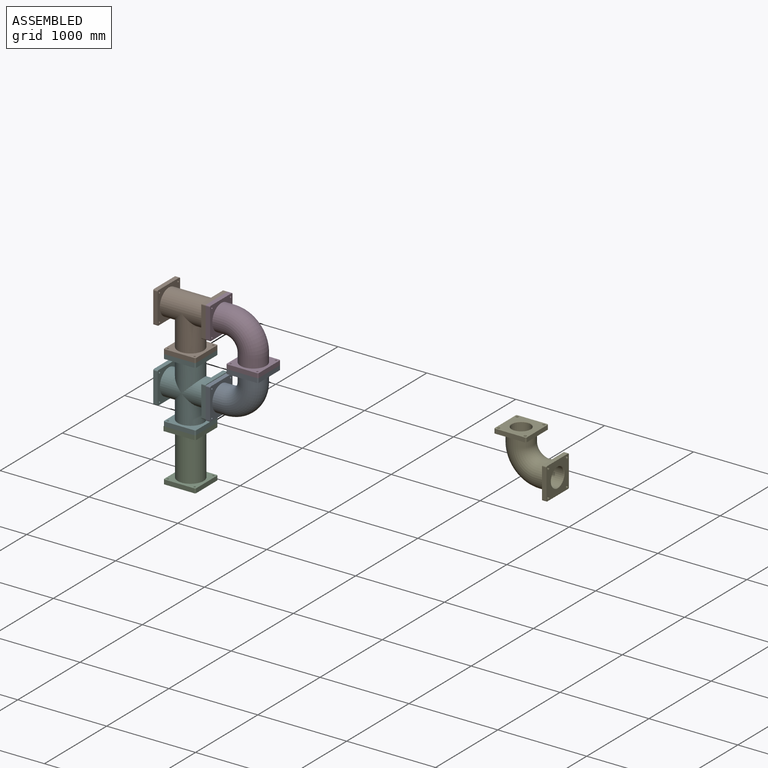
[diagram: assembled view]
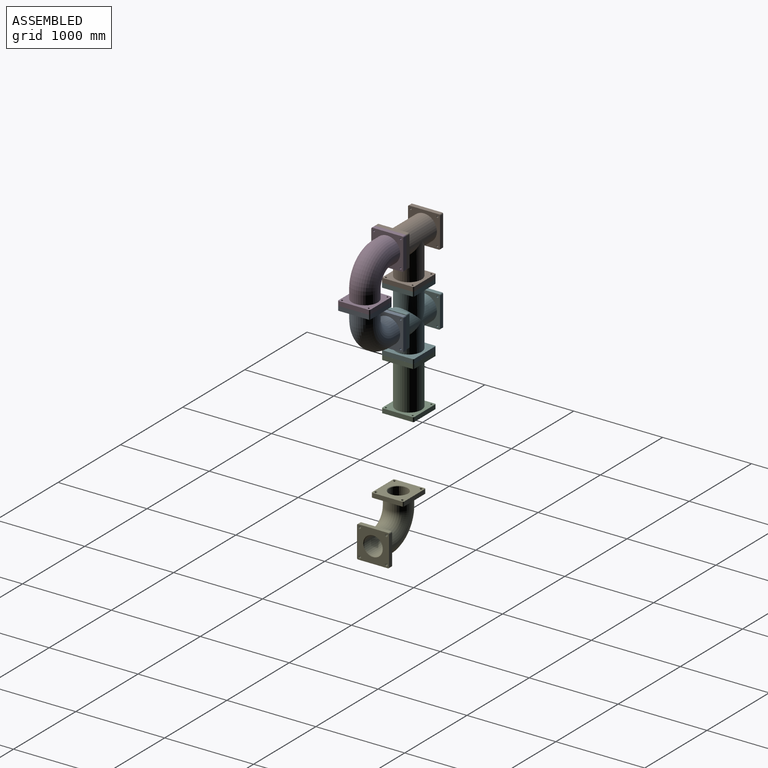
[diagram: assembled view, second angle]
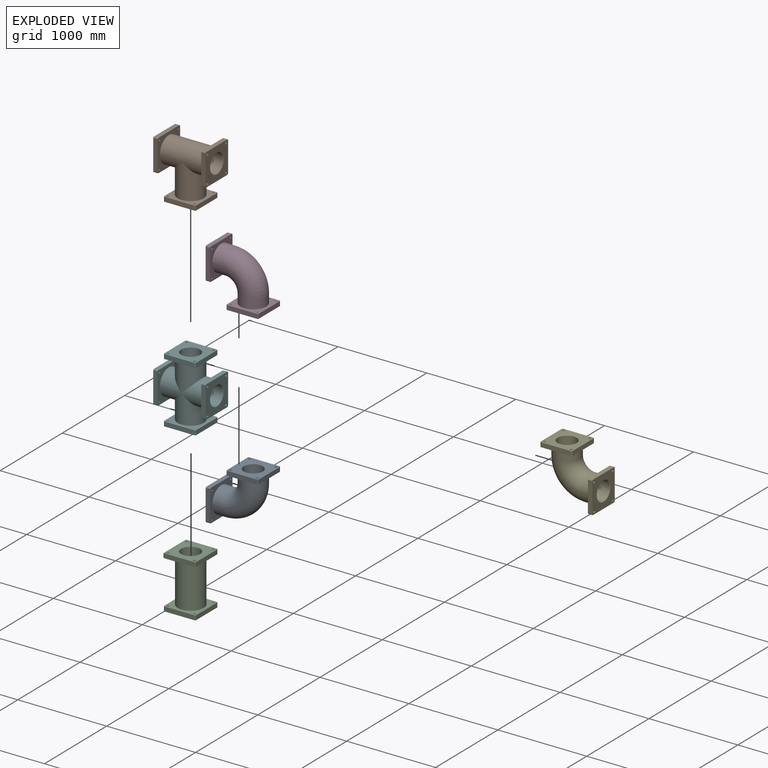
[diagram: exploded view]
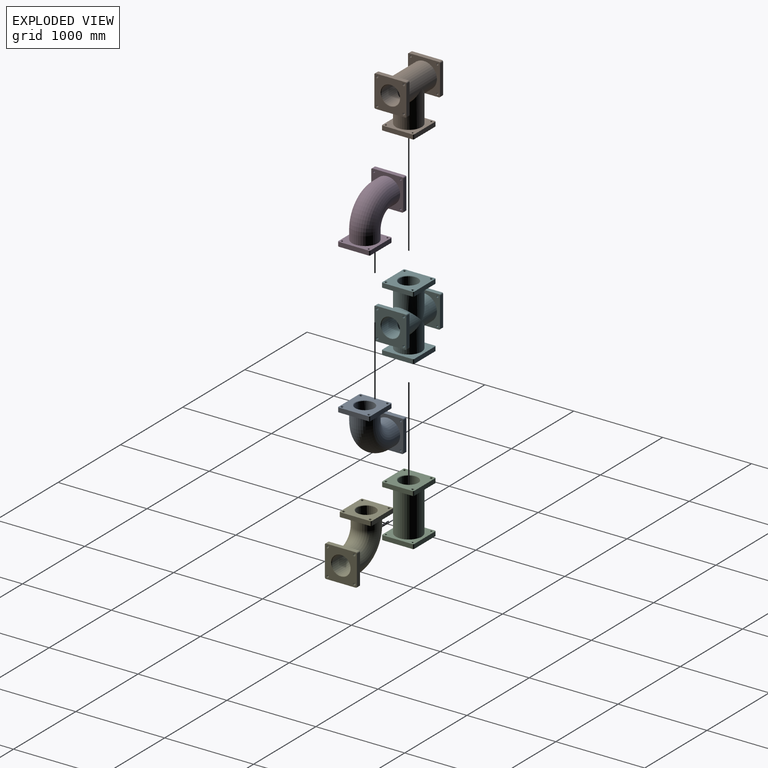
[diagram: exploded view, second angle]
ASSEMBLY  parts=6 mates=4
PART A: 52 faces, bbox 590x360x590 mm
  f0: cylinder r=10mm len=45mm, axis (0,0,1), area 2827.4mm2, adj f2,f30
  f1: cylinder r=15mm len=30mm, axis (0,0,1), area 471.2mm2, adj f2,f20
  f2: plane 30x30mm, normal (0,0,1), area 392.7mm2, adj f0,f1
  f3: cylinder r=10mm len=45mm, axis (0,0,1), area 2827.4mm2, adj f5,f30
  f4: cylinder r=15mm len=30mm, axis (0,0,1), area 471.2mm2, adj f5,f20
  f5: plane 30x30mm, normal (0,0,1), area 392.7mm2, adj f3,f4
  f6: cylinder r=10mm len=45mm, axis (0,0,1), area 2827.4mm2, adj f8,f30
  f7: cylinder r=15mm len=30mm, axis (0,0,1), area 471.2mm2, adj f8,f20
  f8: plane 30x30mm, normal (0,0,1), area 392.7mm2, adj f6,f7
  f9: cylinder r=10mm len=45mm, axis (1,0,0), area 2827.4mm2, adj f11,f35
  f10: cylinder r=15mm len=30mm, axis (1,0,0), area 471.2mm2, adj f11,f21
  f11: plane 30x30mm, normal (1,0,0), area 392.7mm2, adj f9,f10
  f12: cylinder r=10mm len=45mm, axis (1,0,0), area 2827.4mm2, adj f14,f35
  f13: cylinder r=15mm len=30mm, axis (1,0,0), area 471.2mm2, adj f14,f21
  f14: plane 30x30mm, normal (1,0,0), area 392.7mm2, adj f12,f13
  f15: cylinder r=10mm len=45mm, axis (1,0,0), area 2827.4mm2, adj f17,f35
  f16: cylinder r=15mm len=30mm, axis (1,0,0), area 471.2mm2, adj f17,f21
  f17: plane 30x30mm, normal (1,0,0), area 392.7mm2, adj f15,f16
  f18: cylinder r=145mm len=290mm, axis (1,0,0), area 91106.2mm2, adj f22,f35
  f19: cylinder r=145mm len=290mm, axis (0,0,-1), area 91106.2mm2, adj f22,f30
  f20: plane 360x360mm, normal (0,0,1), area 88635.7mm2, adj f1,f4,f7,f26,f27,f28,f29,f36
  f21: plane 360x360mm, normal (1,0,0), area 88635.7mm2, adj f10,f13,f16,f31,f32,f33,f34,f37
  f22: torus R=260mm, axis (0,-1,0), area 372084.1mm2, adj f18,f19
  f23: cylinder r=105mm len=210mm, axis (0,0,-1), area 95661.5mm2, adj f24,f36
  f24: torus R=260mm, axis (0,-1,0), area 269440.2mm2, adj f23,f25
  f25: cylinder r=105mm len=210mm, axis (1,0,0), area 95661.5mm2, adj f24,f37
  f26: plane 336x50mm, normal (1,0,0), area 16800mm2, adj f20,f30,f42,f45
  f27: plane 336x50mm, normal (0,1,0), area 16800mm2, adj f20,f30,f42,f43
  f28: plane 336x50mm, normal (-1,0,0), area 16800mm2, adj f20,f30,f43,f44
  f29: plane 336x50mm, normal (0,-1,0), area 16800mm2, adj f20,f30,f44,f45
  f30: plane 360x360mm, normal (0,0,-1), area 62167.8mm2, adj f0,f3,f6,f19,f26,f27,f28,f29
  f31: plane 336x50mm, normal (0,1,0), area 16800mm2, adj f21,f35,f38,f41
  f32: plane 336x50mm, normal (0,0,1), area 16800mm2, adj f21,f35,f38,f39
  f33: plane 336x50mm, normal (0,-1,0), area 16800mm2, adj f21,f35,f39,f40
  f34: plane 336x50mm, normal (0,0,-1), area 16800mm2, adj f21,f35,f40,f41
  f35: plane 360x360mm, normal (-1,0,0), area 62167.8mm2, adj f9,f12,f15,f18,f31,f32,f33,f34
  f36: cone r=110mm half-angle=45deg, axis (0,0,1), area 4776.1mm2, adj f20,f23
  f37: cone r=105mm half-angle=45deg, axis (1,0,0), area 4776.1mm2, adj f21,f25
  f38: cylinder r=12mm len=50mm, axis (-1,0,0), area 942.5mm2, adj f21,f31,f32,f35
  f39: cylinder r=12mm len=50mm, axis (1,0,0), area 942.5mm2, adj f21,f32,f33,f35
  f40: cylinder r=12mm len=50mm, axis (-1,0,0), area 942.5mm2, adj f21,f33,f34,f35
  f41: cylinder r=12mm len=50mm, axis (1,0,0), area 942.5mm2, adj f21,f31,f34,f35
  f42: cylinder r=12mm len=50mm, axis (0,0,-1), area 942.5mm2, adj f20,f26,f27,f30
  f43: cylinder r=12mm len=50mm, axis (0,0,1), area 942.5mm2, adj f20,f27,f28,f30
  f44: cylinder r=12mm len=50mm, axis (0,0,-1), area 942.5mm2, adj f20,f28,f29,f30
  f45: cylinder r=12mm len=50mm, axis (0,0,1), area 942.5mm2, adj f20,f26,f29,f30
  f46: cylinder r=15mm len=30mm, axis (1,0,0), area 471.2mm2, adj f21,f47
  f47: plane 30x30mm, normal (1,0,0), area 392.7mm2, adj f46,f48
  f48: cylinder r=10mm len=45mm, axis (1,0,0), area 2827.4mm2, adj f35,f47
  f49: cylinder r=15mm len=30mm, axis (0,0,1), area 471.2mm2, adj f20,f50
  f50: plane 30x30mm, normal (0,0,1), area 392.7mm2, adj f49,f51
  f51: cylinder r=10mm len=45mm, axis (0,0,1), area 2827.4mm2, adj f30,f50
PART B: 75 faces, bbox 590x360x625 mm
  f0: cylinder r=10mm len=45mm, axis (0,0,-1), area 2827.4mm2, adj f2,f66
  f1: cylinder r=15mm len=30mm, axis (0,0,-1), area 471.2mm2, adj f2,f12
  f2: plane 30x30mm, normal (0,0,-1), area 392.7mm2, adj f0,f1
  f3: cylinder r=10mm len=45mm, axis (0,0,-1), area 2827.4mm2, adj f5,f66
  f4: cylinder r=15mm len=30mm, axis (0,0,-1), area 471.2mm2, adj f5,f12
  f5: plane 30x30mm, normal (0,0,-1), area 392.7mm2, adj f3,f4
  f6: cylinder r=10mm len=45mm, axis (0,0,-1), area 2827.4mm2, adj f8,f66
  f7: cylinder r=15mm len=30mm, axis (0,0,-1), area 471.2mm2, adj f8,f12
  f8: plane 30x30mm, normal (0,0,-1), area 392.7mm2, adj f6,f7
  f9: cylinder r=145mm len=395mm, axis (0,0,1), area 275769.5mm2, adj f50,f66
  f10: cylinder r=105mm len=580mm, axis (-1,0,0), area 338669.9mm2, adj f11,f29,f30,f60,f61
  f11: cylinder r=105mm len=432.13mm, axis (0,0,1), area 246059.4mm2, adj f10,f60,f61,f70
  f12: plane 360x360mm, normal (0,0,-1), area 88635.7mm2, adj f1,f4,f7,f62,f63,f64,f65,f67
  f13: cylinder r=12mm len=50mm, axis (1,0,0), area 942.5mm2, adj f20,f21,f24,f40
  f14: cylinder r=12mm len=50mm, axis (-1,0,0), area 942.5mm2, adj f20,f21,f22,f40
  f15: cylinder r=12mm len=50mm, axis (1,0,0), area 942.5mm2, adj f20,f22,f23,f40
  f16: cylinder r=12mm len=50mm, axis (-1,0,0), area 942.5mm2, adj f20,f23,f24,f40
  f17: cylinder r=10mm len=45mm, axis (1,0,0), area 2827.4mm2, adj f18,f20
  f18: plane 30x30mm, normal (1,0,0), area 392.7mm2, adj f17,f19
  f19: cylinder r=15mm len=30mm, axis (1,0,0), area 471.2mm2, adj f18,f40
  f20: plane 360x360mm, normal (-1,0,0), area 62167.8mm2, adj f13,f14,f15,f16,f17,f21,f22,f23
  f21: plane 336x50mm, normal (0,-1,0), area 16800mm2, adj f13,f14,f20,f40
  f22: plane 336x50mm, normal (0,0,1), area 16800mm2, adj f14,f15,f20,f40
  f23: plane 336x50mm, normal (0,1,0), area 16800mm2, adj f15,f16,f20,f40
  f24: plane 336x50mm, normal (0,0,-1), area 16800mm2, adj f13,f16,f20,f40
  f25: cylinder r=12mm len=50mm, axis (-1,0,0), area 942.5mm2, adj f34,f35,f38,f39
  f26: cylinder r=12mm len=50mm, axis (1,0,0), area 942.5mm2, adj f34,f35,f36,f39
  f27: cylinder r=12mm len=50mm, axis (-1,0,0), area 942.5mm2, adj f34,f36,f37,f39
  f28: cylinder r=12mm len=50mm, axis (1,0,0), area 942.5mm2, adj f34,f37,f38,f39
  f29: cone r=110mm half-angle=45deg, axis (-1,0,0), area 4776.1mm2, adj f10,f39
  f30: cone r=105mm half-angle=45deg, axis (1,0,0), area 4776.1mm2, adj f10,f40
  f31: cylinder r=10mm len=45mm, axis (-1,0,0), area 2827.4mm2, adj f32,f34
  f32: plane 30x30mm, normal (-1,0,0), area 392.7mm2, adj f31,f33
  f33: cylinder r=15mm len=30mm, axis (-1,0,0), area 471.2mm2, adj f32,f39
  f34: plane 360x360mm, normal (1,0,0), area 62167.8mm2, adj f25,f26,f27,f28,f31,f35,f36,f37
  f35: plane 336x50mm, normal (0,1,0), area 16800mm2, adj f25,f26,f34,f39
  f36: plane 336x50mm, normal (0,0,1), area 16800mm2, adj f26,f27,f34,f39
  f37: plane 336x50mm, normal (0,-1,0), area 16800mm2, adj f27,f28,f34,f39
  f38: plane 336x50mm, normal (0,0,-1), area 16800mm2, adj f25,f28,f34,f39
  f39: plane 360x360mm, normal (-1,0,0), area 88635.7mm2, adj f25,f26,f27,f28,f29,f33,f35,f36
  f40: plane 360x360mm, normal (1,0,0), area 88635.7mm2, adj f13,f14,f15,f16,f19,f21,f22,f23
  f41: plane 30x30mm, normal (-1,0,0), area 392.7mm2, adj f42,f43
  f42: cylinder r=15mm len=30mm, axis (-1,0,0), area 471.2mm2, adj f39,f41
  f43: cylinder r=10mm len=45mm, axis (-1,0,0), area 2827.4mm2, adj f34,f41
  f44: plane 30x30mm, normal (-1,0,0), area 392.7mm2, adj f45,f46
  f45: cylinder r=15mm len=30mm, axis (-1,0,0), area 471.2mm2, adj f39,f44
  f46: cylinder r=10mm len=45mm, axis (-1,0,0), area 2827.4mm2, adj f34,f44
  f47: plane 30x30mm, normal (-1,0,0), area 392.7mm2, adj f48,f49
  f48: cylinder r=15mm len=30mm, axis (-1,0,0), area 471.2mm2, adj f39,f47
  f49: cylinder r=10mm len=45mm, axis (-1,0,0), area 2827.4mm2, adj f34,f47
  f50: cylinder r=145mm len=490mm, axis (-1,0,0), area 362320.3mm2, adj f9,f20,f34
  f51: plane 30x30mm, normal (1,0,0), area 392.7mm2, adj f52,f53
  f52: cylinder r=15mm len=30mm, axis (1,0,0), area 471.2mm2, adj f40,f51
  f53: cylinder r=10mm len=45mm, axis (1,0,0), area 2827.4mm2, adj f20,f51
  f54: plane 30x30mm, normal (1,0,0), area 392.7mm2, adj f55,f56
  f55: cylinder r=15mm len=30mm, axis (1,0,0), area 471.2mm2, adj f40,f54
  f56: cylinder r=10mm len=45mm, axis (1,0,0), area 2827.4mm2, adj f20,f54
  f57: plane 30x30mm, normal (1,0,0), area 392.7mm2, adj f58,f59
  f58: cylinder r=15mm len=30mm, axis (1,0,0), area 471.2mm2, adj f40,f57
  f59: cylinder r=10mm len=45mm, axis (1,0,0), area 2827.4mm2, adj f20,f57
  f60: plane 15.73x0.3mm, normal (0,0,-1), area 3.1mm2, adj f10,f11
  f61: plane 15.73x0.3mm, normal (0,0,-1), area 3.1mm2, adj f10,f11
  f62: plane 336x50mm, normal (0,1,0), area 16800mm2, adj f12,f66,f71,f74
  f63: plane 336x50mm, normal (1,0,0), area 16800mm2, adj f12,f66,f71,f72
  f64: plane 336x50mm, normal (0,-1,0), area 16800mm2, adj f12,f66,f72,f73
  f65: plane 336x50mm, normal (-1,0,0), area 16800mm2, adj f12,f66,f73,f74
  f66: plane 360x360mm, normal (0,0,1), area 62167.8mm2, adj f0,f3,f6,f9,f62,f63,f64,f65
  f67: cylinder r=15mm len=30mm, axis (0,0,-1), area 471.2mm2, adj f12,f68
  f68: plane 30x30mm, normal (0,0,-1), area 392.7mm2, adj f67,f69
  f69: cylinder r=10mm len=45mm, axis (0,0,-1), area 2827.4mm2, adj f66,f68
  f70: cone r=110mm half-angle=45deg, axis (0,0,-1), area 4776.1mm2, adj f11,f12
  f71: cylinder r=12mm len=50mm, axis (0,0,1), area 942.5mm2, adj f12,f62,f63,f66
  f72: cylinder r=12mm len=50mm, axis (0,0,-1), area 942.5mm2, adj f12,f63,f64,f66
  f73: cylinder r=12mm len=50mm, axis (0,0,1), area 942.5mm2, adj f12,f64,f65,f66
  f74: cylinder r=12mm len=50mm, axis (0,0,-1), area 942.5mm2, adj f12,f62,f65,f66
PART C: 47 faces, bbox 590x360x360 mm
  f0: cylinder r=10mm len=45mm, axis (-1,0,0), area 2827.4mm2, adj f2,f39
  f1: cylinder r=15mm len=30mm, axis (-1,0,0), area 471.2mm2, adj f2,f20
  f2: plane 30x30mm, normal (-1,0,0), area 392.7mm2, adj f0,f1
  f3: cylinder r=10mm len=45mm, axis (-1,0,0), area 2827.4mm2, adj f5,f39
  f4: cylinder r=15mm len=30mm, axis (-1,0,0), area 471.2mm2, adj f5,f20
  f5: plane 30x30mm, normal (-1,0,0), area 392.7mm2, adj f3,f4
  f6: cylinder r=10mm len=45mm, axis (-1,0,0), area 2827.4mm2, adj f8,f39
  f7: cylinder r=15mm len=30mm, axis (-1,0,0), area 471.2mm2, adj f8,f20
  f8: plane 30x30mm, normal (-1,0,0), area 392.7mm2, adj f6,f7
  f9: cylinder r=145mm len=490mm, axis (-1,0,0), area 446420.3mm2, adj f26,f39
  f10: cylinder r=10mm len=45mm, axis (1,0,0), area 2827.4mm2, adj f12,f26
  f11: cylinder r=15mm len=30mm, axis (1,0,0), area 471.2mm2, adj f12,f19
  f12: plane 30x30mm, normal (1,0,0), area 392.7mm2, adj f10,f11
  f13: cylinder r=10mm len=45mm, axis (1,0,0), area 2827.4mm2, adj f15,f26
  f14: cylinder r=15mm len=30mm, axis (1,0,0), area 471.2mm2, adj f15,f19
  f15: plane 30x30mm, normal (1,0,0), area 392.7mm2, adj f13,f14
  f16: cylinder r=10mm len=45mm, axis (1,0,0), area 2827.4mm2, adj f18,f26
  f17: cylinder r=15mm len=30mm, axis (1,0,0), area 471.2mm2, adj f18,f19
  f18: plane 30x30mm, normal (1,0,0), area 392.7mm2, adj f16,f17
  f19: plane 360x360mm, normal (1,0,0), area 88666.6mm2, adj f11,f14,f17,f22,f23,f24,f25,f27
  f20: plane 360x360mm, normal (-1,0,0), area 88635.7mm2, adj f1,f4,f7,f34,f35,f36,f37,f38
  f21: cylinder r=105mm len=580mm, axis (-1,0,0), area 382646mm2, adj f33,f34
  f22: plane 336x50mm, normal (0,0,-1), area 16800mm2, adj f19,f26,f30,f32
  f23: plane 336x50mm, normal (0,1,0), area 16800mm2, adj f19,f26,f30,f31
  f24: plane 348x50mm, normal (0,0,1), area 17400mm2, adj f19,f25,f26,f31
  f25: plane 348x50mm, normal (0,-1,0), area 17400mm2, adj f19,f24,f26,f32
  f26: plane 360x360mm, normal (-1,0,0), area 62198.7mm2, adj f9,f10,f13,f16,f22,f23,f24,f25
  f27: cylinder r=15mm len=30mm, axis (1,0,0), area 471.2mm2, adj f19,f28
  f28: plane 30x30mm, normal (1,0,0), area 392.7mm2, adj f27,f29
  f29: cylinder r=10mm len=45mm, axis (1,0,0), area 2827.4mm2, adj f26,f28
  f30: cylinder r=12mm len=50mm, axis (-1,0,0), area 942.5mm2, adj f19,f22,f23,f26
  f31: cylinder r=12mm len=50mm, axis (1,0,0), area 942.5mm2, adj f19,f23,f24,f26
  f32: cylinder r=12mm len=50mm, axis (1,0,0), area 942.5mm2, adj f19,f22,f25,f26
  f33: cone r=105mm half-angle=45deg, axis (1,0,0), area 4776.1mm2, adj f19,f21
  f34: cone r=110mm half-angle=45deg, axis (-1,0,0), area 4776.1mm2, adj f20,f21
  f35: plane 336x50mm, normal (0,-1,0), area 16800mm2, adj f20,f39,f43,f46
  f36: plane 336x50mm, normal (0,0,1), area 16800mm2, adj f20,f39,f43,f44
  f37: plane 336x50mm, normal (0,1,0), area 16800mm2, adj f20,f39,f44,f45
  f38: plane 336x50mm, normal (0,0,-1), area 16800mm2, adj f20,f39,f45,f46
  f39: plane 360x360mm, normal (1,0,0), area 62167.8mm2, adj f0,f3,f6,f9,f35,f36,f37,f38
  f40: cylinder r=15mm len=30mm, axis (-1,0,0), area 471.2mm2, adj f20,f41
  f41: plane 30x30mm, normal (-1,0,0), area 392.7mm2, adj f40,f42
  f42: cylinder r=10mm len=45mm, axis (-1,0,0), area 2827.4mm2, adj f39,f41
  f43: cylinder r=12mm len=50mm, axis (1,0,0), area 942.5mm2, adj f20,f35,f36,f39
  f44: cylinder r=12mm len=50mm, axis (-1,0,0), area 942.5mm2, adj f20,f36,f37,f39
  f45: cylinder r=12mm len=50mm, axis (1,0,0), area 942.5mm2, adj f20,f37,f38,f39
  f46: cylinder r=12mm len=50mm, axis (-1,0,0), area 942.5mm2, adj f20,f35,f38,f39
PART D: same geometry as A
PART E: same geometry as A
PART F: 91 faces, bbox 590x360x735 mm
  f0: cylinder r=10mm len=45mm, axis (0,0,1), area 2827.4mm2, adj f2,f83
  f1: cylinder r=15mm len=30mm, axis (0,0,1), area 471.2mm2, adj f2,f14
  f2: plane 30x30mm, normal (0,0,1), area 392.7mm2, adj f0,f1
  f3: cylinder r=10mm len=45mm, axis (0,0,1), area 2827.4mm2, adj f5,f83
  f4: cylinder r=15mm len=30mm, axis (0,0,1), area 471.2mm2, adj f5,f14
  f5: plane 30x30mm, normal (0,0,1), area 392.7mm2, adj f3,f4
  f6: cylinder r=10mm len=45mm, axis (0,0,1), area 2827.4mm2, adj f8,f83
  f7: cylinder r=15mm len=30mm, axis (0,0,1), area 471.2mm2, adj f8,f14
  f8: plane 30x30mm, normal (0,0,1), area 392.7mm2, adj f6,f7
  f9: cylinder r=145mm len=317.5mm, axis (0,0,1), area 205162.1mm2, adj f38,f62,f83
  f10: cylinder r=145mm len=317.5mm, axis (0,0,1), area 205162.2mm2, adj f38,f62,f69
  f11: cylinder r=105mm len=290mm, axis (-1,0,0), area 147223mm2, adj f13,f55,f63
  f12: cylinder r=105mm len=290mm, axis (-1,0,0), area 147223mm2, adj f13,f19,f63
  f13: cylinder r=105mm len=362.5mm, axis (0,0,1), area 195053.8mm2, adj f11,f12,f73
  f14: plane 360x360mm, normal (0,0,1), area 88635.7mm2, adj f1,f4,f7,f73,f79,f80,f81,f82
  f15: cylinder r=12mm len=50mm, axis (-1,0,0), area 942.5mm2, adj f23,f24,f27,f28
  f16: cylinder r=12mm len=50mm, axis (1,0,0), area 942.5mm2, adj f23,f24,f25,f28
  f17: cylinder r=12mm len=50mm, axis (-1,0,0), area 942.5mm2, adj f23,f25,f26,f28
  f18: cylinder r=12mm len=50mm, axis (1,0,0), area 942.5mm2, adj f23,f26,f27,f28
  f19: cone r=110mm half-angle=45deg, axis (-1,0,0), area 4776.1mm2, adj f12,f28
  f20: cylinder r=10mm len=45mm, axis (-1,0,0), area 2827.4mm2, adj f21,f23
  f21: plane 30x30mm, normal (-1,0,0), area 392.7mm2, adj f20,f22
  f22: cylinder r=15mm len=30mm, axis (-1,0,0), area 471.2mm2, adj f21,f28
  f23: plane 360x360mm, normal (1,0,0), area 62167.8mm2, adj f15,f16,f17,f18,f20,f24,f25,f26
  f24: plane 336x50mm, normal (0,1,0), area 16800mm2, adj f15,f16,f23,f28
  f25: plane 336x50mm, normal (0,0,1), area 16800mm2, adj f16,f17,f23,f28
  f26: plane 336x50mm, normal (0,-1,0), area 16800mm2, adj f17,f18,f23,f28
  f27: plane 336x50mm, normal (0,0,-1), area 16800mm2, adj f15,f18,f23,f28
  f28: plane 360x360mm, normal (-1,0,0), area 88635.7mm2, adj f15,f16,f17,f18,f19,f22,f24,f25
  f29: plane 30x30mm, normal (-1,0,0), area 392.7mm2, adj f30,f31
  f30: cylinder r=15mm len=30mm, axis (-1,0,0), area 471.2mm2, adj f28,f29
  f31: cylinder r=10mm len=45mm, axis (-1,0,0), area 2827.4mm2, adj f23,f29
  f32: plane 30x30mm, normal (-1,0,0), area 392.7mm2, adj f33,f34
  f33: cylinder r=15mm len=30mm, axis (-1,0,0), area 471.2mm2, adj f28,f32
  f34: cylinder r=10mm len=45mm, axis (-1,0,0), area 2827.4mm2, adj f23,f32
  f35: plane 30x30mm, normal (-1,0,0), area 392.7mm2, adj f36,f37
  f36: cylinder r=15mm len=30mm, axis (-1,0,0), area 471.2mm2, adj f28,f35
  f37: cylinder r=10mm len=45mm, axis (-1,0,0), area 2827.4mm2, adj f23,f35
  f38: cylinder r=145mm len=290mm, axis (-1,0,0), area 139110.2mm2, adj f9,f10,f23
  f39: plane 30x30mm, normal (1,0,0), area 392.7mm2, adj f43,f57
  f40: plane 30x30mm, normal (1,0,0), area 392.7mm2, adj f44,f58
  f41: plane 30x30mm, normal (1,0,0), area 392.7mm2, adj f45,f59
  f42: plane 30x30mm, normal (1,0,0), area 392.7mm2, adj f46,f60
  f43: cylinder r=15mm len=30mm, axis (1,0,0), area 471.2mm2, adj f39,f54
  f44: cylinder r=15mm len=30mm, axis (1,0,0), area 471.2mm2, adj f40,f54
  f45: cylinder r=15mm len=30mm, axis (1,0,0), area 471.2mm2, adj f41,f54
  f46: cylinder r=15mm len=30mm, axis (1,0,0), area 471.2mm2, adj f42,f54
  f47: cylinder r=12mm len=50mm, axis (1,0,0), area 942.5mm2, adj f48,f54,f56,f61
  f48: plane 336x50mm, normal (0,0,1), area 16800mm2, adj f47,f49,f54,f61
  f49: cylinder r=12mm len=50mm, axis (-1,0,0), area 942.5mm2, adj f48,f50,f54,f61
  f50: plane 336x50mm, normal (0,-1,0), area 16800mm2, adj f49,f51,f54,f61
  f51: cylinder r=12mm len=50mm, axis (1,0,0), area 942.5mm2, adj f50,f52,f54,f61
  f52: plane 336x50mm, normal (0,0,-1), area 16800mm2, adj f51,f53,f54,f61
  f53: cylinder r=12mm len=50mm, axis (-1,0,0), area 942.5mm2, adj f52,f54,f56,f61
  f54: plane 360x360mm, normal (1,0,0), area 88635.7mm2, adj f43,f44,f45,f46,f47,f48,f49,f50
  f55: cone r=105mm half-angle=45deg, axis (1,0,0), area 4776.1mm2, adj f11,f54
  f56: plane 336x50mm, normal (0,1,0), area 16800mm2, adj f47,f53,f54,f61
  f57: cylinder r=10mm len=45mm, axis (1,0,0), area 2827.4mm2, adj f39,f61
  f58: cylinder r=10mm len=45mm, axis (1,0,0), area 2827.4mm2, adj f40,f61
  f59: cylinder r=10mm len=45mm, axis (1,0,0), area 2827.4mm2, adj f41,f61
  f60: cylinder r=10mm len=45mm, axis (1,0,0), area 2827.4mm2, adj f42,f61
  f61: plane 360x360mm, normal (-1,0,0), area 62167.8mm2, adj f47,f48,f49,f50,f51,f52,f53,f56
  f62: cylinder r=145mm len=290mm, axis (-1,0,0), area 139110.2mm2, adj f9,f10,f61
  f63: cylinder r=105mm len=362.5mm, axis (0,0,1), area 195053.8mm2, adj f11,f12,f74
  f64: plane 360x360mm, normal (0,0,-1), area 90756.3mm2, adj f65,f66,f67,f68,f70,f74,f75,f76
  f65: plane 336x50mm, normal (0,1,0), area 16800mm2, adj f64,f69,f75,f78
  f66: plane 336x50mm, normal (1,0,0), area 16800mm2, adj f64,f69,f75,f76
  f67: plane 336x50mm, normal (0,-1,0), area 16800mm2, adj f64,f69,f76,f77
  f68: plane 336x50mm, normal (-1,0,0), area 16800mm2, adj f64,f69,f77,f78
  f69: plane 360x360mm, normal (0,0,1), area 63110.2mm2, adj f10,f65,f66,f67,f68,f72,f75,f76
  f70: cylinder r=15mm len=30mm, axis (0,0,-1), area 471.2mm2, adj f64,f71
  f71: plane 30x30mm, normal (0,0,-1), area 392.7mm2, adj f70,f72
  f72: cylinder r=10mm len=45mm, axis (0,0,-1), area 2827.4mm2, adj f69,f71
  f73: cone r=105mm half-angle=45deg, axis (0,0,1), area 4776.1mm2, adj f13,f14
  f74: cone r=110mm half-angle=45deg, axis (0,0,-1), area 4776.1mm2, adj f63,f64
  f75: cylinder r=12mm len=50mm, axis (0,0,1), area 942.5mm2, adj f64,f65,f66,f69
  f76: cylinder r=12mm len=50mm, axis (0,0,-1), area 942.5mm2, adj f64,f66,f67,f69
  f77: cylinder r=12mm len=50mm, axis (0,0,1), area 942.5mm2, adj f64,f67,f68,f69
  f78: cylinder r=12mm len=50mm, axis (0,0,-1), area 942.5mm2, adj f64,f65,f68,f69
  f79: plane 336x50mm, normal (0,-1,0), area 16800mm2, adj f14,f83,f87,f90
  f80: plane 336x50mm, normal (1,0,0), area 16800mm2, adj f14,f83,f87,f88
  f81: plane 336x50mm, normal (0,1,0), area 16800mm2, adj f14,f83,f88,f89
  f82: plane 336x50mm, normal (-1,0,0), area 16800mm2, adj f14,f83,f89,f90
  f83: plane 360x360mm, normal (0,0,-1), area 62167.8mm2, adj f0,f3,f6,f9,f79,f80,f81,f82
  f84: cylinder r=15mm len=30mm, axis (0,0,1), area 471.2mm2, adj f14,f85
  f85: plane 30x30mm, normal (0,0,1), area 392.7mm2, adj f84,f86
  f86: cylinder r=10mm len=45mm, axis (0,0,1), area 2827.4mm2, adj f83,f85
  f87: cylinder r=12mm len=50mm, axis (0,0,-1), area 942.5mm2, adj f14,f79,f80,f83
  f88: cylinder r=12mm len=50mm, axis (0,0,1), area 942.5mm2, adj f14,f80,f81,f83
  f89: cylinder r=12mm len=50mm, axis (0,0,-1), area 942.5mm2, adj f14,f81,f82,f83
  f90: cylinder r=12mm len=50mm, axis (0,0,1), area 942.5mm2, adj f14,f79,f82,f83
PLACE A rot(axis=(0,0,-1),180deg) t=(744.6,-1579.54,1532.7)mm
PLACE B t=(250.2,-1579.54,2352.7)mm
PLACE C rot(axis=(0,-1,0),90deg) t=(250.26,-1579.48,582.7)mm
PLACE D rot(axis=(0,1,0),180deg) t=(744.6,-1579.54,2352.7)mm
PLACE E t=(3010.15,90.72,783.47)mm
PLACE F t=(250.2,-1579.54,1540.2)mm
MATE fastened F.f13 <-> B.f9  axis (0,0,1) through (250.2,-1579.54,1907.7)mm
MATE fastened A.f19 <-> D.f19  axis (0,0,1) through (955.2,-1579.54,1942.7)mm
MATE fastened C.f19 <-> F.f13  axis (0,0,1) through (250.2,-1579.54,1172.7)mm
MATE fastened B.f29 <-> D.f18  axis (1,0,0) through (545.2,-1579.54,2352.7)mm
